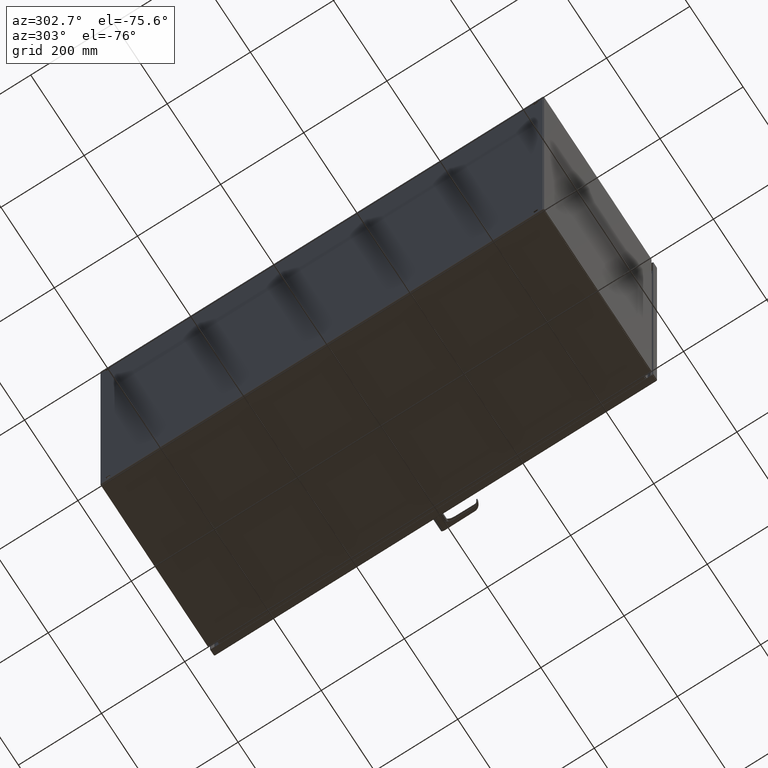
[diagram: clean part render]
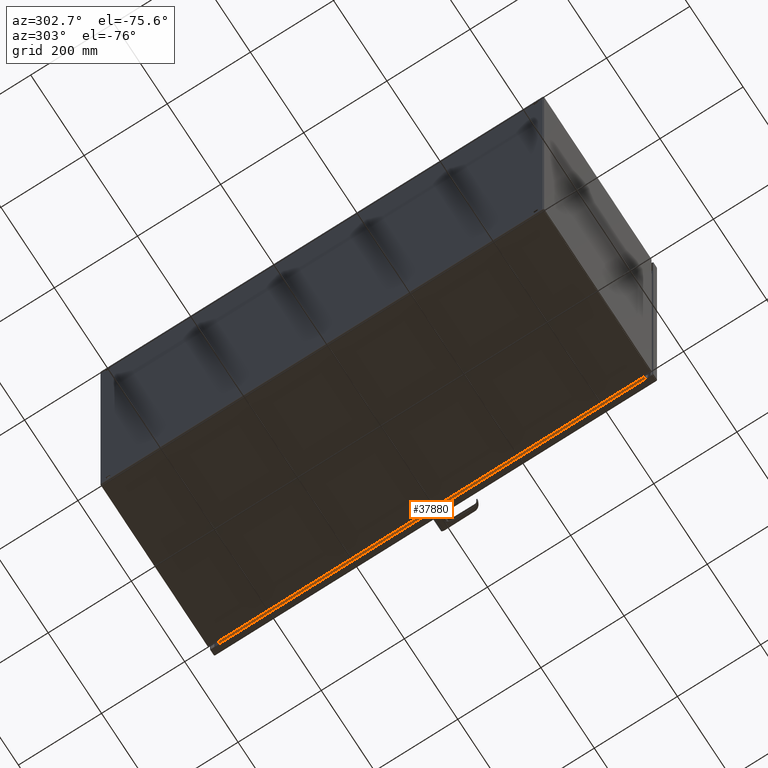
[diagram: same view with one face highlighted and labeled with its STEP entity id]
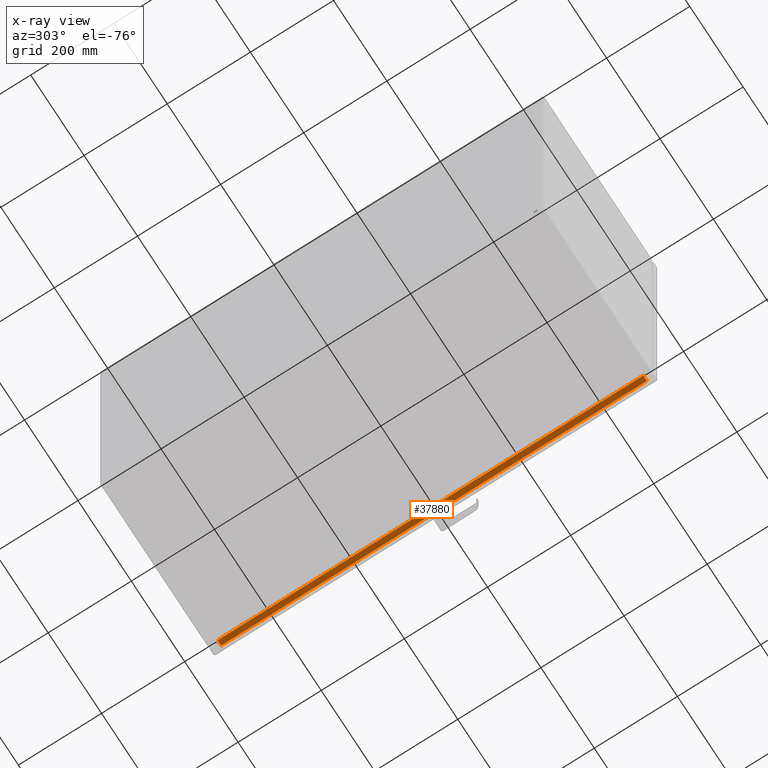
[diagram: x-ray of the same camera — body ghosted, the highlighted face saturated]
A machine part, auxiliary view. The second image highlights one B-rep face of the part: STEP entity #37880.
The next image is the same camera in x-ray: the body ghosted, the highlighted face saturated — about 0% of this face is hidden behind the body in this view.
In plain terms, the highlighted planar face has unit normal (-0, -0, 1).
Its self-contained STEP definition (entity closure, byte-faithful):
#1998 = CARTESIAN_POINT ( 'NONE',  ( 17.25000000000000000, -16.56200000000000117, -146.4060000000000059 ) ) ;
#4775 = EDGE_LOOP ( 'NONE', ( #30985, #67927, #50361, #71628 ) ) ;
#18941 = DIRECTION ( 'NONE',  ( 0.0000000000000000000, 0.0000000000000000000, 1.000000000000000000 ) ) ;
#20885 = DIRECTION ( 'NONE',  ( 2.465190328815659702E-32, 1.000000000000000000, -0.0000000000000000000 ) ) ;
#22590 = VECTOR ( 'NONE', #62407, 39.37007874015748143 ) ;
#24233 = VERTEX_POINT ( 'NONE', #101786 ) ;
#25717 = PLANE ( 'NONE',  #76761 ) ;
#27096 = VECTOR ( 'NONE', #18941, 39.37007874015748143 ) ;
#30598 = VERTEX_POINT ( 'NONE', #112243 ) ;
#30985 = ORIENTED_EDGE ( 'NONE', *, *, #35049, .F. ) ;
#32428 = CARTESIAN_POINT ( 'NONE',  ( 17.25000000000000000, -16.00000000000000000, -20.15731023194452476 ) ) ;
#35049 = EDGE_CURVE ( 'NONE', #24233, #35571, #53769, .T. ) ;
#35571 = VERTEX_POINT ( 'NONE', #36471 ) ;
#36471 = CARTESIAN_POINT ( 'NONE',  ( 17.25000000000000000, -16.03599999999999781, 20.15731023194453542 ) ) ;
#37880 = ADVANCED_FACE ( 'NONE', ( #71182 ), #25717, .F. ) ;
#44606 = CARTESIAN_POINT ( 'NONE',  ( 17.25000000000000000, -16.03599999999999781, -20.26483355854460910 ) ) ;
#48319 = CARTESIAN_POINT ( 'NONE',  ( 17.25000000000000000, -16.00000000000000000, 20.15731023194454252 ) ) ;
#50361 = ORIENTED_EDGE ( 'NONE', *, *, #59066, .F. ) ;
#53769 = LINE ( 'NONE', #48319, #56675 ) ;
#56675 = VECTOR ( 'NONE', #20885, 39.37007874015748143 ) ;
#59066 = EDGE_CURVE ( 'NONE', #98874, #30598, #115532, .T. ) ;
#62407 = DIRECTION ( 'NONE',  ( 0.0000000000000000000, 0.0000000000000000000, 1.000000000000000000 ) ) ;
#62995 = LINE ( 'NONE', #44606, #22590 ) ;
#64458 = DIRECTION ( 'NONE',  ( -2.465190328815659702E-32, -1.000000000000000000, 0.0000000000000000000 ) ) ;
#67927 = ORIENTED_EDGE ( 'NONE', *, *, #107580, .F. ) ;
#71182 = FACE_OUTER_BOUND ( 'NONE', #4775, .T. ) ;
#71628 = ORIENTED_EDGE ( 'NONE', *, *, #99839, .T. ) ;
#75138 = VECTOR ( 'NONE', #86940, 39.37007874015748143 ) ;
#76761 = AXIS2_PLACEMENT_3D ( 'NONE', #81444, #109651, #64458 ) ;
#77693 = LINE ( 'NONE', #1998, #27096 ) ;
#81444 = CARTESIAN_POINT ( 'NONE',  ( 17.25000000000000000, -16.00000000000000000, -146.4060000000000059 ) ) ;
#86940 = DIRECTION ( 'NONE',  ( -2.465190328815659702E-32, -1.000000000000000000, 0.0000000000000000000 ) ) ;
#97297 = CARTESIAN_POINT ( 'NONE',  ( 17.25000000000000000, -16.03599999999999781, -20.15731023194452476 ) ) ;
#98874 = VERTEX_POINT ( 'NONE', #97297 ) ;
#99839 = EDGE_CURVE ( 'NONE', #98874, #35571, #62995, .T. ) ;
#101786 = CARTESIAN_POINT ( 'NONE',  ( 17.25000000000000000, -16.56200000000000117, 20.15731023194453542 ) ) ;
#107580 = EDGE_CURVE ( 'NONE', #30598, #24233, #77693, .T. ) ;
#109651 = DIRECTION ( 'NONE',  ( -1.000000000000000000, 2.465190328815659702E-32, 0.0000000000000000000 ) ) ;
#112243 = CARTESIAN_POINT ( 'NONE',  ( 17.25000000000000000, -16.56200000000000117, -20.15731023194452476 ) ) ;
#115532 = LINE ( 'NONE', #32428, #75138 ) ;